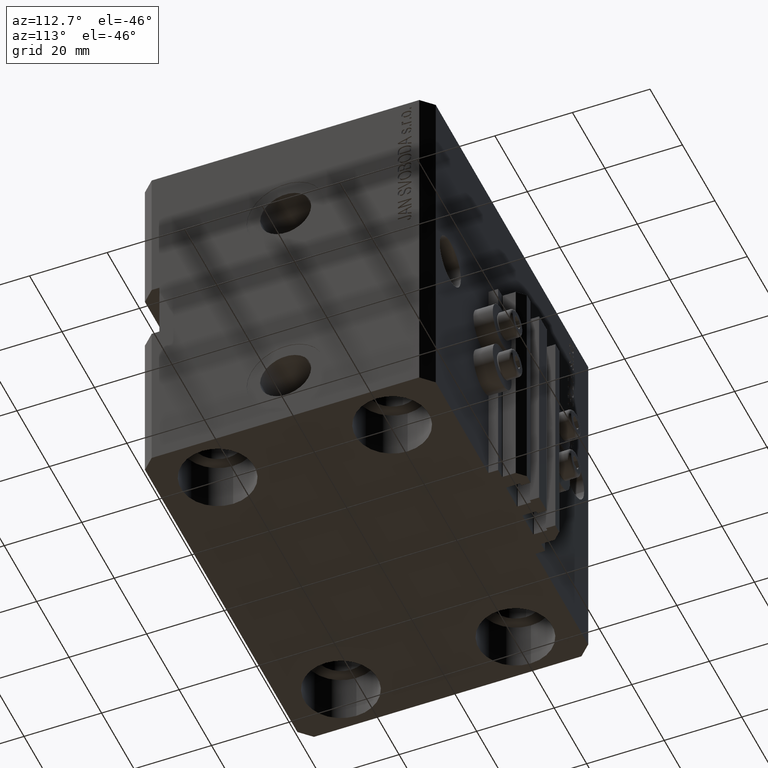
[diagram: clean part render]
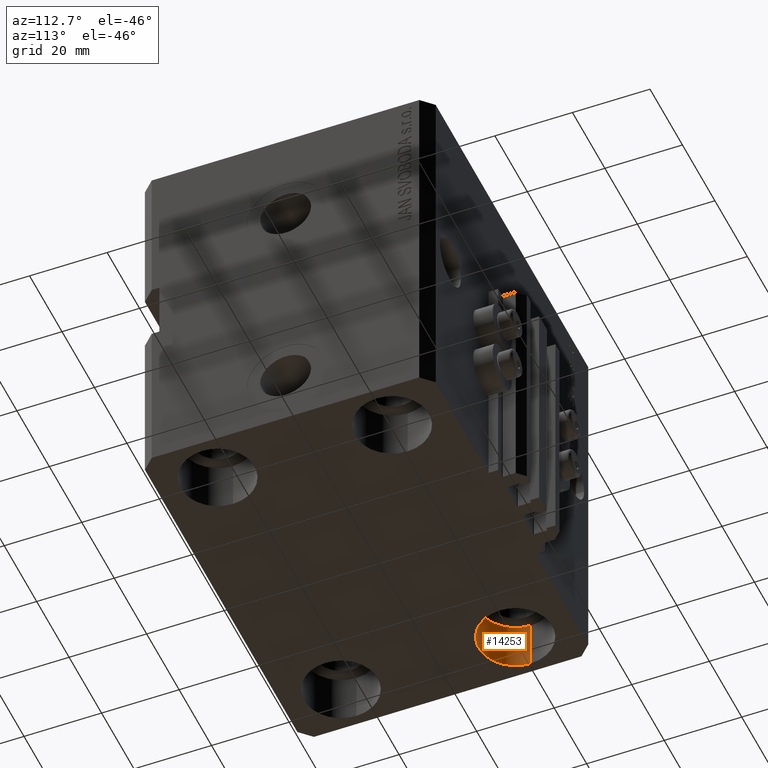
[diagram: same view with one face highlighted and labeled with its STEP entity id]
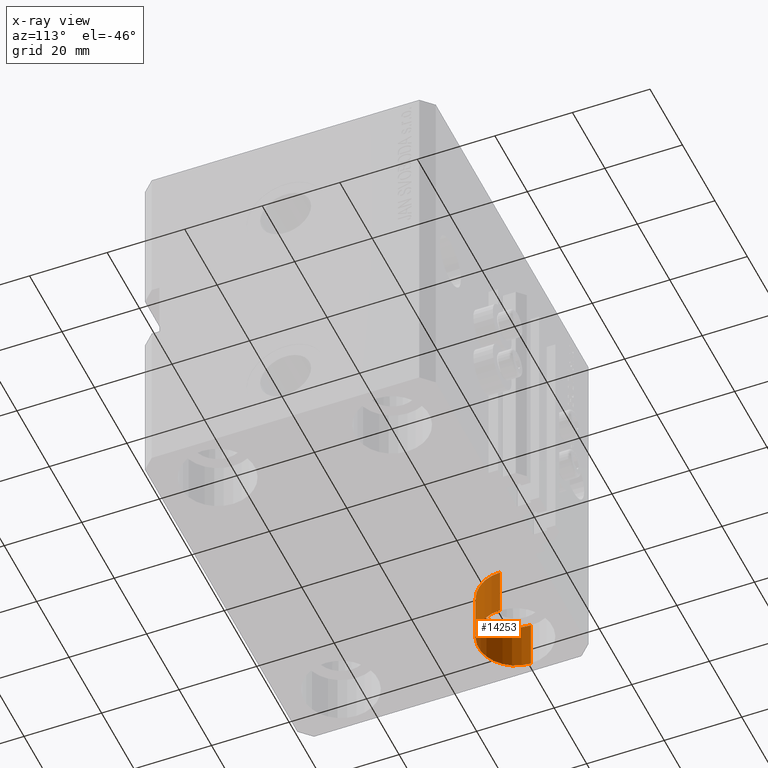
[diagram: x-ray of the same camera — body ghosted, the highlighted face saturated]
A machine part, auxiliary view. The second image highlights one B-rep face of the part: STEP entity #14253.
The next image is the same camera in x-ray: the body ghosted, the highlighted face saturated — about 0% of this face is hidden behind the body in this view.
In plain terms, the highlighted cylindrical surface (partial cylindrical patch) has radius 9.5 mm, axis along (-0, -0, -1).
Its self-contained STEP definition (entity closure, byte-faithful):
#113 = ORIENTED_EDGE ( 'NONE', *, *, #32281, .T. ) ;
#326 = VERTEX_POINT ( 'NONE', #37767 ) ;
#1239 = VERTEX_POINT ( 'NONE', #40911 ) ;
#4932 = VERTEX_POINT ( 'NONE', #38064 ) ;
#8331 = VECTOR ( 'NONE', #43965, 1000.000000000000000 ) ;
#10012 = CARTESIAN_POINT ( 'NONE',  ( -28.50000000000000355, 22.50000000000000000, -82.00000000000000000 ) ) ;
#10087 = DIRECTION ( 'NONE',  ( -0.000000000000000000, -0.000000000000000000, -1.000000000000000000 ) ) ;
#11510 = FACE_OUTER_BOUND ( 'NONE', #35044, .T. ) ;
#13955 = LINE ( 'NONE', #38814, #37100 ) ;
#14253 = ADVANCED_FACE ( 'NONE', ( #11510 ), #18290, .F. ) ;
#14677 = CARTESIAN_POINT ( 'NONE',  ( -38.00000000000000711, 22.50000000000000000, -82.00000000000000000 ) ) ;
#15316 = CARTESIAN_POINT ( 'NONE',  ( -38.00000000000000711, 22.50000000000000000, -95.00000000000000000 ) ) ;
#17066 = AXIS2_PLACEMENT_3D ( 'NONE', #44860, #30159, #43250 ) ;
#18290 = CYLINDRICAL_SURFACE ( 'NONE', #44999, 9.500000000000001776 ) ;
#18758 = DIRECTION ( 'NONE',  ( -0.000000000000000000, -0.000000000000000000, -1.000000000000000000 ) ) ;
#26129 = ORIENTED_EDGE ( 'NONE', *, *, #44241, .F. ) ;
#30033 = DIRECTION ( 'NONE',  ( -0.000000000000000000, -0.000000000000000000, 1.000000000000000000 ) ) ;
#30156 = AXIS2_PLACEMENT_3D ( 'NONE', #15316, #30033, #37747 ) ;
#30159 = DIRECTION ( 'NONE',  ( -0.000000000000000000, -0.000000000000000000, 1.000000000000000000 ) ) ;
#32281 = EDGE_CURVE ( 'NONE', #33511, #1239, #46633, .T. ) ;
#32778 = DIRECTION ( 'NONE',  ( -1.000000000000000000, 0.000000000000000000, 0.000000000000000000 ) ) ;
#33511 = VERTEX_POINT ( 'NONE', #10012 ) ;
#34018 = CIRCLE ( 'NONE', #17066, 9.500000000000001776 ) ;
#35044 = EDGE_LOOP ( 'NONE', ( #41981, #113, #46644, #26129 ) ) ;
#37100 = VECTOR ( 'NONE', #10087, 1000.000000000000000 ) ;
#37747 = DIRECTION ( 'NONE',  ( 1.000000000000000000, 0.000000000000000000, 0.000000000000000000 ) ) ;
#37767 = CARTESIAN_POINT ( 'NONE',  ( -47.50000000000000711, 22.50000000000000000, -82.00000000000000000 ) ) ;
#38064 = CARTESIAN_POINT ( 'NONE',  ( -47.50000000000000711, 22.50000000000000000, -95.00000000000000000 ) ) ;
#38814 = CARTESIAN_POINT ( 'NONE',  ( -47.50000000000000711, 22.50000000000000000, -82.00000000000000000 ) ) ;
#40911 = CARTESIAN_POINT ( 'NONE',  ( -28.50000000000000355, 22.50000000000000000, -95.00000000000000000 ) ) ;
#41981 = ORIENTED_EDGE ( 'NONE', *, *, #43867, .T. ) ;
#42463 = CIRCLE ( 'NONE', #30156, 9.500000000000001776 ) ;
#43006 = CARTESIAN_POINT ( 'NONE',  ( -28.50000000000000355, 22.50000000000000000, -82.00000000000000000 ) ) ;
#43250 = DIRECTION ( 'NONE',  ( 1.000000000000000000, 0.000000000000000000, 0.000000000000000000 ) ) ;
#43691 = EDGE_CURVE ( 'NONE', #4932, #1239, #42463, .T. ) ;
#43867 = EDGE_CURVE ( 'NONE', #326, #33511, #34018, .T. ) ;
#43965 = DIRECTION ( 'NONE',  ( -0.000000000000000000, -0.000000000000000000, -1.000000000000000000 ) ) ;
#44241 = EDGE_CURVE ( 'NONE', #326, #4932, #13955, .T. ) ;
#44860 = CARTESIAN_POINT ( 'NONE',  ( -38.00000000000000711, 22.50000000000000000, -82.00000000000000000 ) ) ;
#44999 = AXIS2_PLACEMENT_3D ( 'NONE', #14677, #18758, #32778 ) ;
#46633 = LINE ( 'NONE', #43006, #8331 ) ;
#46644 = ORIENTED_EDGE ( 'NONE', *, *, #43691, .F. ) ;